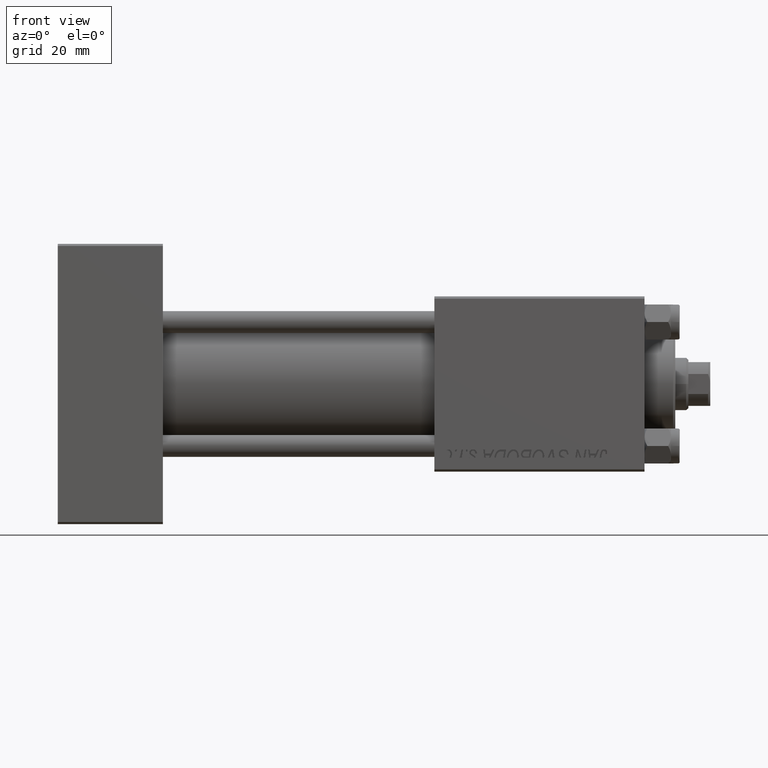
[diagram: clean part render]
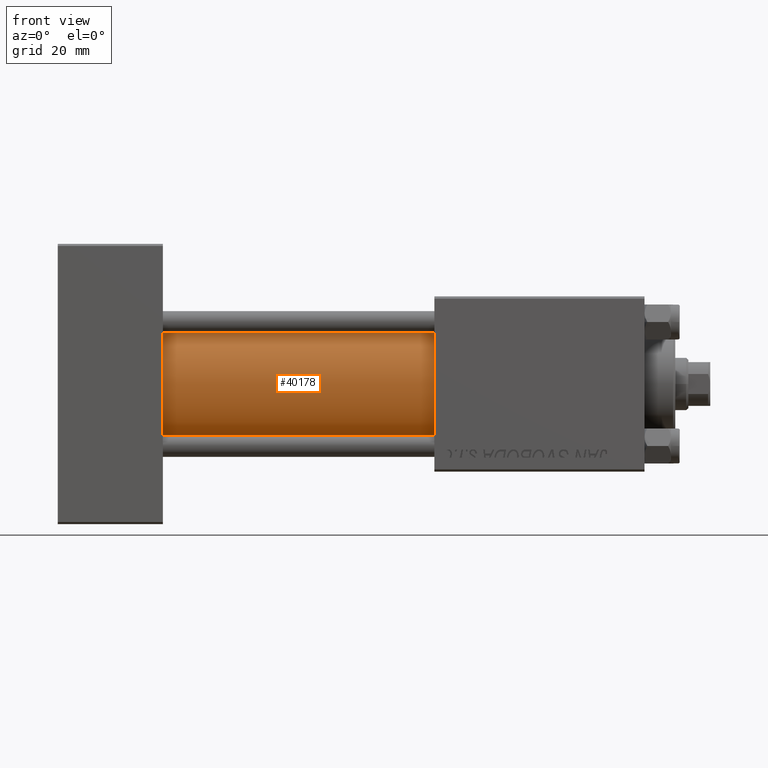
[diagram: same view with one face highlighted and labeled with its STEP entity id]
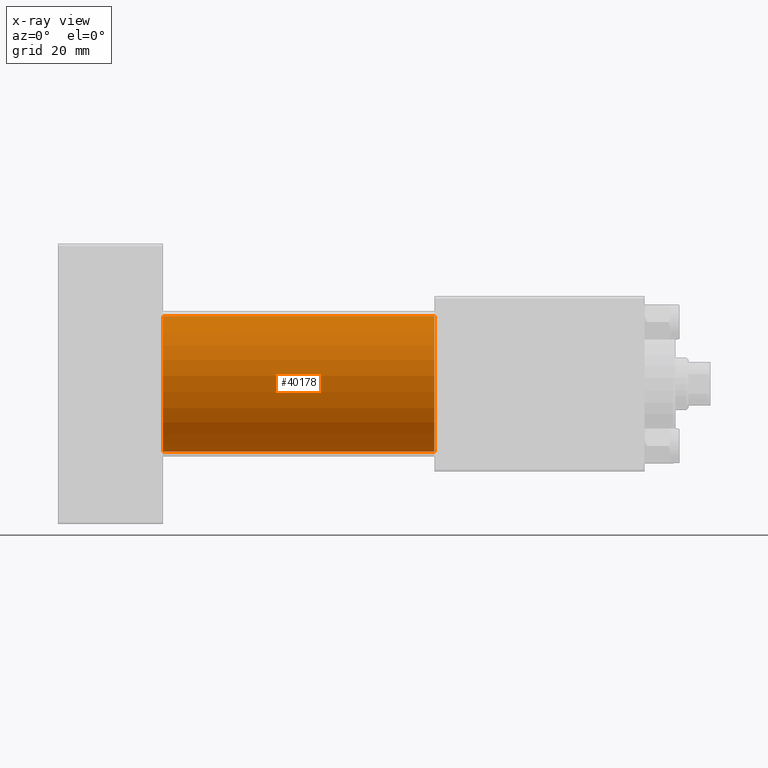
[diagram: x-ray of the same camera — body ghosted, the highlighted face saturated]
A machine part, front view. The second image highlights one B-rep face of the part: STEP entity #40178.
The next image is the same camera in x-ray: the body ghosted, the highlighted face saturated — about 0% of this face is hidden behind the body in this view.
In plain terms, the highlighted cylindrical surface (partial cylindrical patch) has radius 15.5 mm, axis along (-1, -0, -0).
Its self-contained STEP definition (entity closure, byte-faithful):
#212 = CARTESIAN_POINT ( 'NONE',  ( 86.00000000000000000, -7.038826752868131828E-16, -15.50000000000000000 ) ) ;
#3756 = DIRECTION ( 'NONE',  ( 0.000000000000000000, 0.000000000000000000, 1.000000000000000000 ) ) ;
#5932 = CARTESIAN_POINT ( 'NONE',  ( 86.00000000000000000, -2.602085213965210642E-15, 0.000000000000000000 ) ) ;
#6783 = CARTESIAN_POINT ( 'NONE',  ( 24.00000000000000000, -2.602085213965210642E-15, 0.000000000000000000 ) ) ;
#7805 = EDGE_CURVE ( 'NONE', #25100, #43779, #33536, .T. ) ;
#10961 = AXIS2_PLACEMENT_3D ( 'NONE', #6783, #49946, #3756 ) ;
#13541 = VERTEX_POINT ( 'NONE', #14006 ) ;
#13706 = CARTESIAN_POINT ( 'NONE',  ( 86.00000000000000000, -7.038826752868131828E-16, -15.50000000000000000 ) ) ;
#14006 = CARTESIAN_POINT ( 'NONE',  ( 86.00000000000000000, -2.602085213965210642E-15, 15.50000000000000000 ) ) ;
#14663 = CARTESIAN_POINT ( 'NONE',  ( 24.00000000000000000, -2.602085213965210642E-15, 15.50000000000000000 ) ) ;
#15006 = VECTOR ( 'NONE', #16980, 1000.000000000000000 ) ;
#15483 = VERTEX_POINT ( 'NONE', #212 ) ;
#16980 = DIRECTION ( 'NONE',  ( -1.000000000000000000, -0.000000000000000000, -0.000000000000000000 ) ) ;
#17531 = DIRECTION ( 'NONE',  ( 1.000000000000000000, 0.000000000000000000, 0.000000000000000000 ) ) ;
#17745 = DIRECTION ( 'NONE',  ( -1.000000000000000000, -0.000000000000000000, -0.000000000000000000 ) ) ;
#18167 = VECTOR ( 'NONE', #17745, 1000.000000000000000 ) ;
#19716 = ORIENTED_EDGE ( 'NONE', *, *, #7805, .T. ) ;
#20435 = EDGE_CURVE ( 'NONE', #13541, #25100, #44032, .T. ) ;
#21124 = DIRECTION ( 'NONE',  ( 0.000000000000000000, 0.000000000000000000, 1.000000000000000000 ) ) ;
#21660 = CIRCLE ( 'NONE', #43461, 15.50000000000000000 ) ;
#22535 = EDGE_CURVE ( 'NONE', #15483, #43779, #32640, .T. ) ;
#23424 = CARTESIAN_POINT ( 'NONE',  ( 24.00000000000000000, -7.038826752868131828E-16, -15.50000000000000000 ) ) ;
#25100 = VERTEX_POINT ( 'NONE', #14663 ) ;
#25681 = FACE_OUTER_BOUND ( 'NONE', #49850, .T. ) ;
#29630 = ORIENTED_EDGE ( 'NONE', *, *, #33077, .F. ) ;
#32378 = AXIS2_PLACEMENT_3D ( 'NONE', #36812, #40347, #21124 ) ;
#32640 = LINE ( 'NONE', #13706, #15006 ) ;
#32950 = DIRECTION ( 'NONE',  ( 0.000000000000000000, 0.000000000000000000, -1.000000000000000000 ) ) ;
#33077 = EDGE_CURVE ( 'NONE', #13541, #15483, #21660, .T. ) ;
#33536 = CIRCLE ( 'NONE', #10961, 15.50000000000000000 ) ;
#35681 = ORIENTED_EDGE ( 'NONE', *, *, #22535, .F. ) ;
#36812 = CARTESIAN_POINT ( 'NONE',  ( 86.00000000000000000, -2.602085213965210642E-15, 0.000000000000000000 ) ) ;
#40178 = ADVANCED_FACE ( 'NONE', ( #25681 ), #47916, .T. ) ;
#40347 = DIRECTION ( 'NONE',  ( -1.000000000000000000, -0.000000000000000000, -0.000000000000000000 ) ) ;
#43461 = AXIS2_PLACEMENT_3D ( 'NONE', #5932, #17531, #32950 ) ;
#43779 = VERTEX_POINT ( 'NONE', #23424 ) ;
#44032 = LINE ( 'NONE', #48813, #18167 ) ;
#45776 = ORIENTED_EDGE ( 'NONE', *, *, #20435, .T. ) ;
#47916 = CYLINDRICAL_SURFACE ( 'NONE', #32378, 15.50000000000000000 ) ;
#48813 = CARTESIAN_POINT ( 'NONE',  ( 86.00000000000000000, -2.602085213965210642E-15, 15.50000000000000000 ) ) ;
#49850 = EDGE_LOOP ( 'NONE', ( #35681, #29630, #45776, #19716 ) ) ;
#49946 = DIRECTION ( 'NONE',  ( 1.000000000000000000, 0.000000000000000000, 0.000000000000000000 ) ) ;